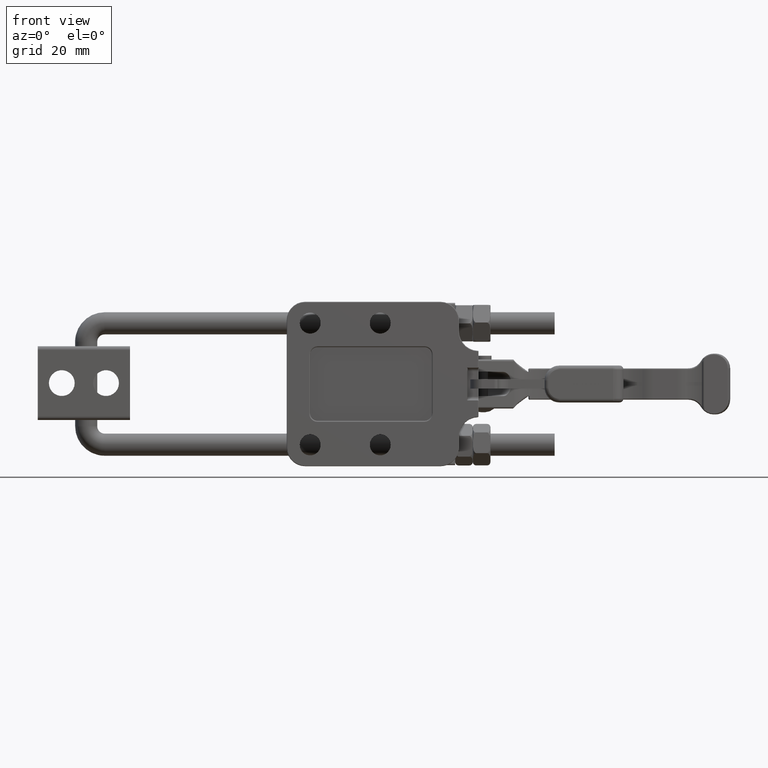
[diagram: clean part render]
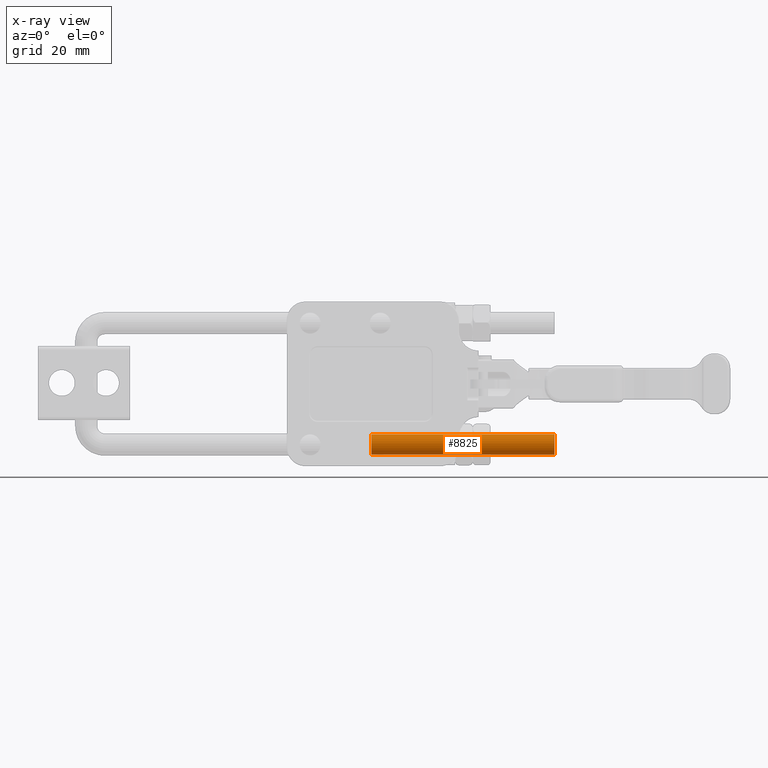
[diagram: x-ray — body ghosted, one internal face saturated and labeled with its STEP entity id]
A machine part, front view, then the same camera in x-ray: the body is ghosted and one INTERNAL B-rep face — a face not visible from any outside direction — is saturated and labeled: STEP entity #8825.
In plain terms, the highlighted cylindrical surface (bore or boss wall) has radius 2.75 mm, axis along (1, 0, -0).
Its self-contained STEP definition (entity closure, byte-faithful):
#475=FACE_BOUND('',#3090,.T.);
#1978=CYLINDRICAL_SURFACE('',#9784,2.75);
#2495=FACE_OUTER_BOUND('',#3089,.T.);
#3089=EDGE_LOOP('',(#8228));
#3090=EDGE_LOOP('',(#8229));
#3589=CIRCLE('',#9785,2.75);
#3590=CIRCLE('',#9786,2.75);
#4410=VERTEX_POINT('',#48068);
#4411=VERTEX_POINT('',#48070);
#5684=EDGE_CURVE('',#4410,#4410,#3589,.T.);
#5685=EDGE_CURVE('',#4411,#4411,#3590,.T.);
#8228=ORIENTED_EDGE('',*,*,#5684,.T.);
#8229=ORIENTED_EDGE('',*,*,#5685,.F.);
#8825=ADVANCED_FACE('',(#2495,#475),#1978,.T.);
#9784=AXIS2_PLACEMENT_3D('',#48067,#12143,#12144);
#9785=AXIS2_PLACEMENT_3D('',#48069,#12145,#12146);
#9786=AXIS2_PLACEMENT_3D('',#48071,#12147,#12148);
#12143=DIRECTION('center_axis',(0.,-1.,0.));
#12144=DIRECTION('ref_axis',(1.,0.,0.));
#12145=DIRECTION('center_axis',(0.,-1.,0.));
#12146=DIRECTION('ref_axis',(-1.,0.,0.));
#12147=DIRECTION('center_axis',(0.,-1.,0.));
#12148=DIRECTION('ref_axis',(-1.,0.,0.));
#48067=CARTESIAN_POINT('Origin',(-16.45,0.,0.));
#48068=CARTESIAN_POINT('',(-19.2,49.68,-3.36777869765522E-16));
#48069=CARTESIAN_POINT('Origin',(-16.45,49.68,0.));
#48070=CARTESIAN_POINT('',(-19.2,0.,-3.36777869765522E-16));
#48071=CARTESIAN_POINT('Origin',(-16.45,0.,0.));